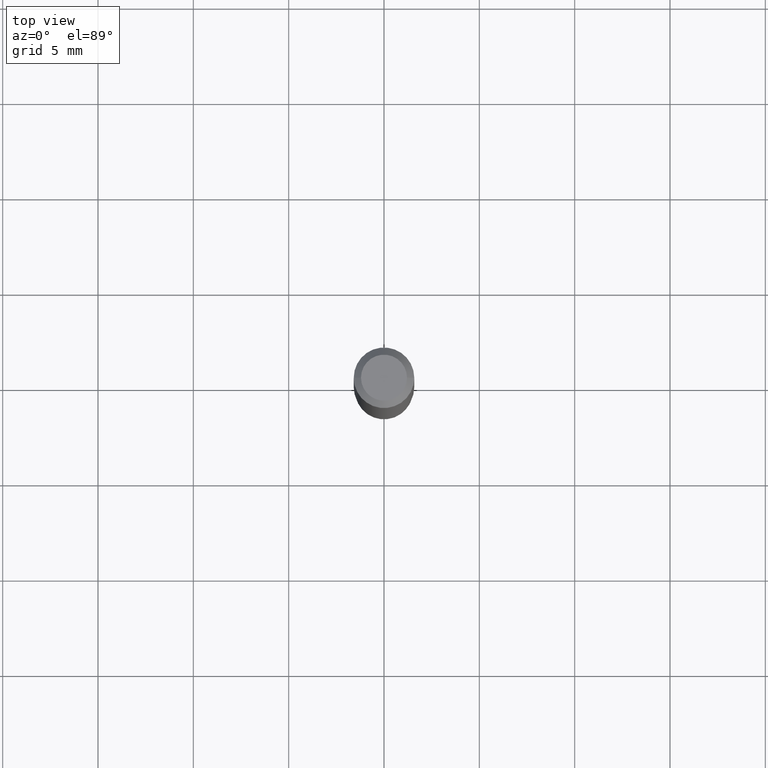
[diagram: clean part render]
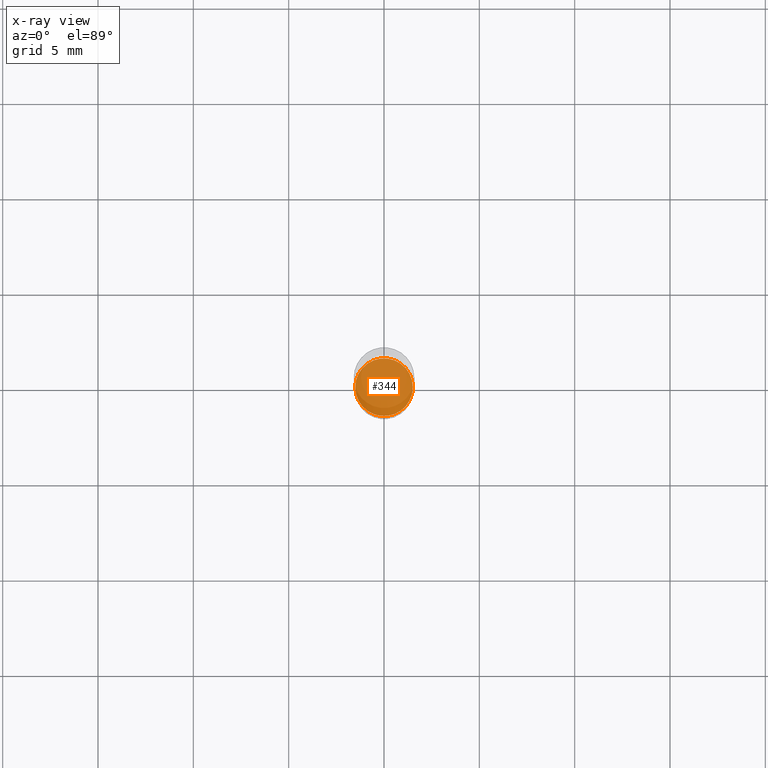
[diagram: x-ray — body ghosted, one internal face saturated and labeled with its STEP entity id]
A machine part, top view, then the same camera in x-ray: the body is ghosted and one INTERNAL B-rep face — a face not visible from any outside direction — is saturated and labeled: STEP entity #344.
In plain terms, the highlighted planar face has unit normal (-0, 0, 1).
Its self-contained STEP definition (entity closure, byte-faithful):
#31 = VERTEX_POINT ( 'NONE', #455 ) ;
#101 = DIRECTION ( 'NONE',  ( 1.000000000000000000, -6.982962677686265922E-15, 4.876176775795935793E-29 ) ) ;
#104 = DIRECTION ( 'NONE',  ( -2.438088387897960049E-29, 3.491481338843145188E-15, 1.000000000000000000 ) ) ;
#105 = CARTESIAN_POINT ( 'NONE',  ( 0.05949999999999997652, -4.395775005603518747E-15, -1.140000000000000124 ) ) ;
#107 = CARTESIAN_POINT ( 'NONE',  ( 2.787834439051055989E-29, -3.980288726281186698E-15, -1.140000000000000124 ) ) ;
#163 = VERTEX_POINT ( 'NONE', #105 ) ;
#167 = CIRCLE ( 'NONE', #493, 0.05949999999999997652 ) ;
#172 = EDGE_CURVE ( 'NONE', #31, #163, #167, .T. ) ;
#187 = DIRECTION ( 'NONE',  ( -2.445468806185136597E-29, 3.491481338843145583E-15, 1.000000000000000000 ) ) ;
#213 = CARTESIAN_POINT ( 'NONE',  ( 2.787834439051055989E-29, -3.980288726281186698E-15, -1.140000000000000124 ) ) ;
#229 = AXIS2_PLACEMENT_3D ( 'NONE', #213, #187, #380 ) ;
#240 = ORIENTED_EDGE ( 'NONE', *, *, #172, .F. ) ;
#272 = EDGE_LOOP ( 'NONE', ( #442, #240 ) ) ;
#285 = AXIS2_PLACEMENT_3D ( 'NONE', #107, #104, #101 ) ;
#303 = FACE_OUTER_BOUND ( 'NONE', #272, .T. ) ;
#324 = EDGE_CURVE ( 'NONE', #163, #31, #468, .T. ) ;
#344 = ADVANCED_FACE ( 'NONE', ( #303 ), #466, .F. ) ;
#380 = DIRECTION ( 'NONE',  ( 1.000000000000000000, -6.982962677686261977E-15, 0.000000000000000000 ) ) ;
#409 = DIRECTION ( 'NONE',  ( -2.445468806185136597E-29, 3.491481338843145583E-15, 1.000000000000000000 ) ) ;
#442 = ORIENTED_EDGE ( 'NONE', *, *, #324, .F. ) ;
#455 = CARTESIAN_POINT ( 'NONE',  ( -0.05949999999999997652, -3.554866571329815905E-15, -1.140000000000000124 ) ) ;
#456 = CARTESIAN_POINT ( 'NONE',  ( 2.787834439051055989E-29, -3.980288726281186698E-15, -1.140000000000000124 ) ) ;
#464 = DIRECTION ( 'NONE',  ( 1.000000000000000000, -6.982962677686261977E-15, 0.000000000000000000 ) ) ;
#466 = PLANE ( 'NONE',  #285 ) ;
#468 = CIRCLE ( 'NONE', #229, 0.05949999999999997652 ) ;
#493 = AXIS2_PLACEMENT_3D ( 'NONE', #456, #409, #464 ) ;